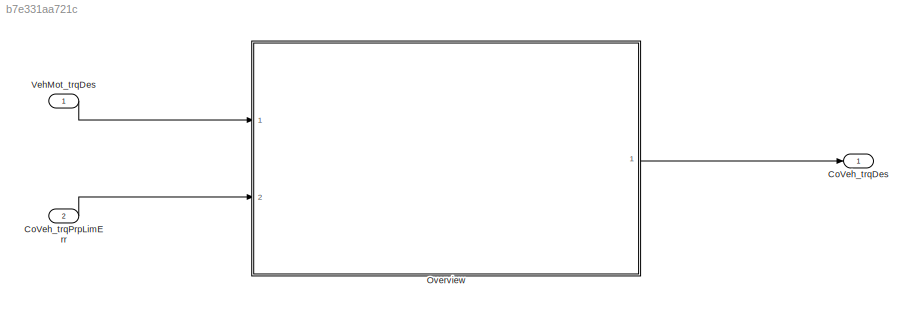
MODEL slx_b7e331aa721c
KIND model
CONFIG AbsTol = auto
CONFIG EnableMultiTasking = off
CONFIG FixedStep = auto
CONFIG MaxStep = auto
CONFIG MinStep = auto
CONFIG RelTol = 1e-3
CONFIG SampleTimeConstraint = Unconstrained
CONFIG Solver = VariableStepAuto
CONFIG SolverName = VariableStepAuto
CONFIG StartTime = 0.0
CONFIG StopTime = 10.0
BLOCK [Outport] CoVeh_trqDes
  IconDisplay = Port number
BLOCK [Inport] CoVeh_trqPrpLimErr
  IconDisplay = Port number
  Port = 2
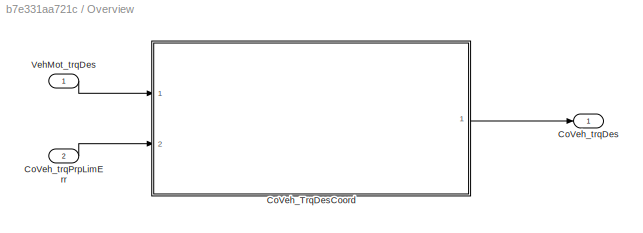
BLOCK [SubSystem] Overview
  Ports = [2, 1]
  RequestExecContextInheritance = off
BLOCK [ModelReference] Overview/CoVeh_TrqDesCoord
  ModelNameDialog = CoVeh_TrqDesCoord
  ModelReferenceVersion = 1.49
  Ports = [2, 1]
BLOCK [Outport] Overview/CoVeh_trqDes
  IconDisplay = Port number
BLOCK [Inport] Overview/CoVeh_trqPrpLimErr
  IconDisplay = Port number
  Port = 2
BLOCK [Inport] Overview/VehMot_trqDes
  IconDisplay = Port number
BLOCK [Inport] VehMot_trqDes
  IconDisplay = Port number
LINE CoVeh_trqPrpLimErr:1 -> Overview:2
LINE Overview/CoVeh_TrqDesCoord:1 -> Overview/CoVeh_trqDes:1
LINE Overview/CoVeh_trqPrpLimErr:1 -> Overview/CoVeh_TrqDesCoord:2
LINE Overview/VehMot_trqDes:1 -> Overview/CoVeh_TrqDesCoord:1
LINE Overview:1 -> CoVeh_trqDes:1
LINE VehMot_trqDes:1 -> Overview:1
